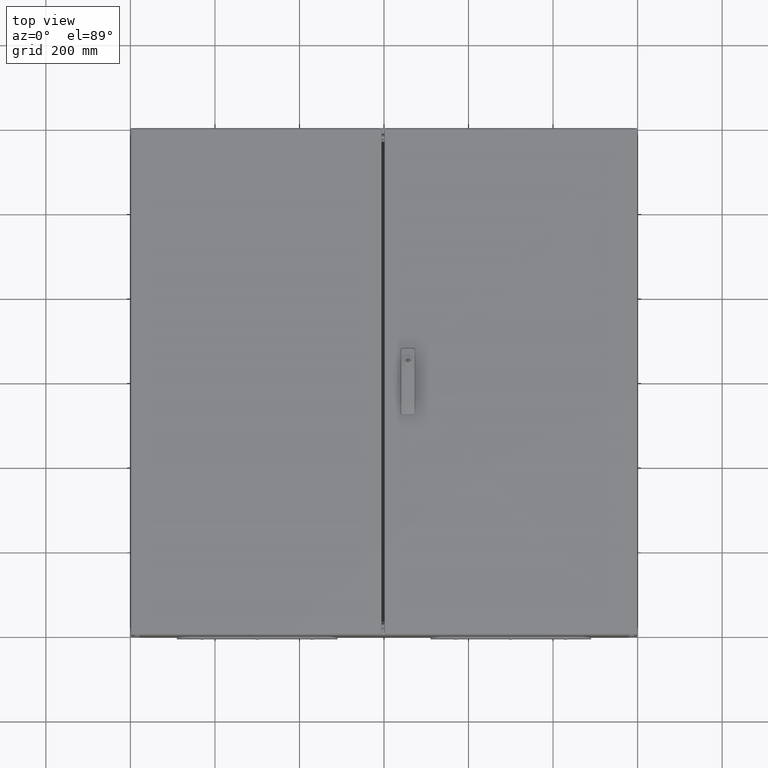
[diagram: clean part render]
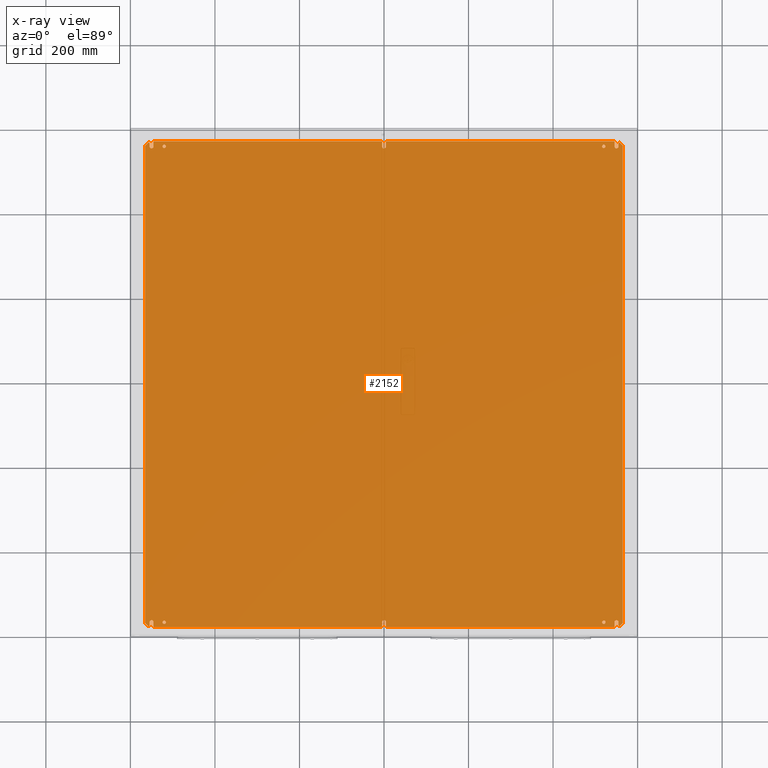
[diagram: x-ray — body ghosted, one internal face saturated and labeled with its STEP entity id]
A machine part, top view, then the same camera in x-ray: the body is ghosted and one INTERNAL B-rep face — a face not visible from any outside direction — is saturated and labeled: STEP entity #2152.
In plain terms, the highlighted planar face has unit normal (0, 0, 1).
Its self-contained STEP definition (entity closure, byte-faithful):
#332 = CARTESIAN_POINT ( 'NONE',  ( 524.0000000000000000, -562.9999999999998900, 2.499999999997726300 ) ) ;
#343 = CARTESIAN_POINT ( 'NONE',  ( -545.2500000000000000, 562.9999999999998900, 2.499999999997726300 ) ) ;
#377 = CARTESIAN_POINT ( 'NONE',  ( 516.0000000000000000, -562.9999999999998900, 2.499999999997726300 ) ) ;
#425 = CARTESIAN_POINT ( 'NONE',  ( -554.7500000000001100, -569.9999999999998900, 2.499999999997726300 ) ) ;
#448 = CARTESIAN_POINT ( 'NONE',  ( -565.0000000000003400, 564.5784271247459900, 2.500000000000000400 ) ) ;
#474 = CARTESIAN_POINT ( 'NONE',  ( -565.0000000000002300, -564.5784271247459900, 2.499999999997726300 ) ) ;
#503 = CARTESIAN_POINT ( 'NONE',  ( 558.1642135623732200, 571.4142135623728800, 2.499999999997726300 ) ) ;
#519 = CARTESIAN_POINT ( 'NONE',  ( 545.2500000000000000, 562.9999999999998900, 2.499999999997726300 ) ) ;
#559 = CARTESIAN_POINT ( 'NONE',  ( -4.749999999999893400, 574.9999999999998900, 2.500000000000000000 ) ) ;
#587 = CARTESIAN_POINT ( 'NONE',  ( 516.0000000000000000, 562.9999999999998900, 2.499999999997726300 ) ) ;
#606 = CARTESIAN_POINT ( 'NONE',  ( -554.7500000000001100, -562.9999999999998900, 2.499999999997726300 ) ) ;
#626 = CARTESIAN_POINT ( 'NONE',  ( -4.749999999999809900, -575.0000000000000000, 2.500000000000000000 ) ) ;
#652 = CARTESIAN_POINT ( 'NONE',  ( 524.0000000000000000, 562.9999999999998900, 2.499999999997726300 ) ) ;
#656 = CARTESIAN_POINT ( 'NONE',  ( 554.7500000000001100, -562.9999999999998900, 2.499999999997726300 ) ) ;
#686 = CARTESIAN_POINT ( 'NONE',  ( -524.0000000000000000, 562.9999999999998900, 2.499999999997726300 ) ) ;
#704 = CARTESIAN_POINT ( 'NONE',  ( -545.2500000000000000, -574.9999999999998900, 2.499999999997726300 ) ) ;
#712 = CARTESIAN_POINT ( 'NONE',  ( 4.750000000000004400, 574.9999999999998900, 2.500000000000000000 ) ) ;
#743 = CARTESIAN_POINT ( 'NONE',  ( -524.0000000000000000, -562.9999999999998900, 2.499999999997726300 ) ) ;
#748 = CARTESIAN_POINT ( 'NONE',  ( 554.7500000000001100, -569.9999999999998900, 2.499999999997726300 ) ) ;
#762 = CARTESIAN_POINT ( 'NONE',  ( 565.0000000000001100, -564.5784271247459900, 2.500000000000000400 ) ) ;
#773 = CARTESIAN_POINT ( 'NONE',  ( 545.2500000000000000, 574.9999999999998900, 2.499999999997726300 ) ) ;
#782 = CARTESIAN_POINT ( 'NONE',  ( 565.0000000000001100, 564.5784271247459900, 2.499999999997726300 ) ) ;
#783 = CARTESIAN_POINT ( 'NONE',  ( -545.2500000000000000, 574.9999999999997700, 2.500000000000000000 ) ) ;
#816 = CARTESIAN_POINT ( 'NONE',  ( 554.7500000000001100, 569.9999999999998900, 2.499999999997726300 ) ) ;
#826 = CARTESIAN_POINT ( 'NONE',  ( 4.750000000000200700, -563.0000000000000000, 2.500000000000000000 ) ) ;
#832 = CARTESIAN_POINT ( 'NONE',  ( 4.750000000000036400, 562.9999999999998900, 2.500000000000000000 ) ) ;
#851 = CARTESIAN_POINT ( 'NONE',  ( -516.0000000000000000, 562.9999999999998900, 2.499999999997726300 ) ) ;
#856 = CARTESIAN_POINT ( 'NONE',  ( -558.1642135623732200, 571.4142135623728800, 2.499999999997726300 ) ) ;
#872 = CARTESIAN_POINT ( 'NONE',  ( -516.0000000000000000, -562.9999999999998900, 2.499999999997726300 ) ) ;
#888 = CARTESIAN_POINT ( 'NONE',  ( -554.7500000000001100, 562.9999999999998900, 2.499999999997726300 ) ) ;
#909 = CARTESIAN_POINT ( 'NONE',  ( -554.7500000000001100, 569.9999999999998900, 2.499999999997726300 ) ) ;
#932 = CARTESIAN_POINT ( 'NONE',  ( 554.7500000000001100, 562.9999999999998900, 2.499999999997726300 ) ) ;
#981 = CARTESIAN_POINT ( 'NONE',  ( -4.749999999999992000, 562.9999999999998900, 2.500000000000000000 ) ) ;
#1023 = CARTESIAN_POINT ( 'NONE',  ( 4.750000000000144800, -575.0000000000001100, 2.500000000000000000 ) ) ;
#1063 = CARTESIAN_POINT ( 'NONE',  ( 545.2500000000000000, -562.9999999999998900, 2.499999999997726300 ) ) ;
#1104 = CARTESIAN_POINT ( 'NONE',  ( -4.749999999999854300, -563.0000000000000000, 2.500000000000000000 ) ) ;
#1166 = CARTESIAN_POINT ( 'NONE',  ( 558.1642135623732200, -571.4142135623728800, 2.499999999997726300 ) ) ;
#2152 = ADVANCED_FACE ( 'NONE', ( #70309, #71660, #71281, #70774, #71120 ), #91567, .T. ) ;
#6503 = VECTOR ( 'NONE', #21675, 1000.000000000000100 ) ;
#6507 = CIRCLE ( 'NONE', #72916, 4.000000000000003600 ) ;
#6510 = LINE ( 'NONE', #21706, #6503 ) ;
#6552 = CIRCLE ( 'NONE', #73665, 2.000000000000001800 ) ;
#6609 = CIRCLE ( 'NONE', #73848, 4.000000000000003600 ) ;
#11458 = VERTEX_POINT ( 'NONE', #39152 ) ;
#14217 = CARTESIAN_POINT ( 'NONE',  ( 556.7500000000001100, 569.9999999999998900, 2.499999999997726300 ) ) ;
#14220 = DIRECTION ( 'NONE',  ( -1.000000000000000000, 0.0000000000000000000, 0.0000000000000000000 ) ) ;
#14221 = DIRECTION ( 'NONE',  ( -0.0000000000000000000, -0.0000000000000000000, -1.000000000000000000 ) ) ;
#14238 = CARTESIAN_POINT ( 'NONE',  ( -554.7500000000001100, -562.9999999999998900, 2.499999999997726300 ) ) ;
#14265 = CARTESIAN_POINT ( 'NONE',  ( 520.0000000000000000, -562.9999999999998900, 2.499999999997726300 ) ) ;
#14274 = DIRECTION ( 'NONE',  ( 1.000000000000000000, 0.0000000000000000000, 0.0000000000000000000 ) ) ;
#14275 = DIRECTION ( 'NONE',  ( -0.0000000000000000000, -0.0000000000000000000, -1.000000000000000000 ) ) ;
#14292 = DIRECTION ( 'NONE',  ( -1.000000000000000000, 0.0000000000000000000, 0.0000000000000000000 ) ) ;
#14293 = DIRECTION ( 'NONE',  ( 0.0000000000000000000, 0.0000000000000000000, 1.000000000000000000 ) ) ;
#14301 = DIRECTION ( 'NONE',  ( -0.7071067811865507900, 0.7071067811865441300, 0.0000000000000000000 ) ) ;
#14309 = DIRECTION ( 'NONE',  ( 0.0000000000000000000, 0.0000000000000000000, 1.000000000000000000 ) ) ;
#14316 = DIRECTION ( 'NONE',  ( 1.000000000000000000, 0.0000000000000000000, 0.0000000000000000000 ) ) ;
#14331 = CARTESIAN_POINT ( 'NONE',  ( 545.2500000000000000, 574.9999999999998900, 2.499999999997726300 ) ) ;
#14332 = DIRECTION ( 'NONE',  ( 0.0000000000000000000, -1.000000000000000000, 0.0000000000000000000 ) ) ;
#14350 = DIRECTION ( 'NONE',  ( -1.000000000000000000, -9.738798461624179600E-017, -0.0000000000000000000 ) ) ;
#14351 = CARTESIAN_POINT ( 'NONE',  ( -570.0000000000001100, 574.9999999999997700, 2.500000000000000000 ) ) ;
#14368 = DIRECTION ( 'NONE',  ( -4.915049848600949000E-015, 1.000000000000000000, 0.0000000000000000000 ) ) ;
#14371 = CARTESIAN_POINT ( 'NONE',  ( 8.459921131687142500E-015, 562.9999999999998900, 2.500000000000000000 ) ) ;
#14386 = CARTESIAN_POINT ( 'NONE',  ( 558.1642135623732200, 571.4142135623728800, 2.499999999997726300 ) ) ;
#14389 = DIRECTION ( 'NONE',  ( 0.7071067811865507900, -0.7071067811865441300, 0.0000000000000000000 ) ) ;
#14401 = DIRECTION ( 'NONE',  ( 0.0000000000000000000, 0.0000000000000000000, 1.000000000000000000 ) ) ;
#14406 = DIRECTION ( 'NONE',  ( 1.000000000000000000, 0.0000000000000000000, 0.0000000000000000000 ) ) ;
#14421 = CARTESIAN_POINT ( 'NONE',  ( -4.749999999999893400, 574.9999999999998900, 2.500000000000000000 ) ) ;
#14426 = DIRECTION ( 'NONE',  ( -8.239936510889825800E-015, -1.000000000000000000, 0.0000000000000000000 ) ) ;
#14450 = DIRECTION ( 'NONE',  ( -1.000000000000000000, -9.738798461624179600E-017, -0.0000000000000000000 ) ) ;
#14451 = CARTESIAN_POINT ( 'NONE',  ( -570.0000000000001100, 574.9999999999997700, 2.500000000000000000 ) ) ;
#14482 = CARTESIAN_POINT ( 'NONE',  ( -550.0000000000000000, 562.9999999999998900, 2.499999999997726300 ) ) ;
#14509 = CARTESIAN_POINT ( 'NONE',  ( -545.2500000000000000, 574.9999999999998900, 2.499999999997726300 ) ) ;
#14511 = DIRECTION ( 'NONE',  ( 0.0000000000000000000, -1.000000000000000000, 0.0000000000000000000 ) ) ;
#14525 = DIRECTION ( 'NONE',  ( -0.0000000000000000000, -0.0000000000000000000, -1.000000000000000000 ) ) ;
#14528 = DIRECTION ( 'NONE',  ( -1.000000000000000000, 0.0000000000000000000, 0.0000000000000000000 ) ) ;
#14645 = CARTESIAN_POINT ( 'NONE',  ( 4.750000000000063100, 562.9999999999998900, 2.500000000000000000 ) ) ;
#14650 = DIRECTION ( 'NONE',  ( 0.0000000000000000000, 1.000000000000000000, 0.0000000000000000000 ) ) ;
#14651 = CARTESIAN_POINT ( 'NONE',  ( -554.7500000000001100, 562.9999999999998900, 2.499999999997726300 ) ) ;
#14713 = CARTESIAN_POINT ( 'NONE',  ( -556.7500000000001100, 569.9999999999998900, 2.499999999997726300 ) ) ;
#14771 = DIRECTION ( 'NONE',  ( -0.0000000000000000000, 0.0000000000000000000, 1.000000000000000000 ) ) ;
#14777 = DIRECTION ( 'NONE',  ( 1.000000000000000000, 0.0000000000000000000, 0.0000000000000000000 ) ) ;
#15264 = CARTESIAN_POINT ( 'NONE',  ( 550.0000000000000000, 562.9999999999998900, 2.499999999997726300 ) ) ;
#15272 = CARTESIAN_POINT ( 'NONE',  ( -520.0000000000000000, 562.9999999999998900, 2.499999999997726300 ) ) ;
#15283 = DIRECTION ( 'NONE',  ( 0.0000000000000000000, -1.000000000000000000, 0.0000000000000000000 ) ) ;
#15350 = DIRECTION ( 'NONE',  ( -1.000000000000000000, 0.0000000000000000000, 0.0000000000000000000 ) ) ;
#15353 = DIRECTION ( 'NONE',  ( -0.0000000000000000000, -0.0000000000000000000, -1.000000000000000000 ) ) ;
#15362 = CARTESIAN_POINT ( 'NONE',  ( -558.1642135623732200, -571.4142135623728800, 2.499999999997726300 ) ) ;
#15465 = CARTESIAN_POINT ( 'NONE',  ( -550.0000000000000000, -562.9999999999998900, 2.499999999997726300 ) ) ;
#15467 = DIRECTION ( 'NONE',  ( 0.0000000000000000000, 1.000000000000000000, 0.0000000000000000000 ) ) ;
#15723 = CARTESIAN_POINT ( 'NONE',  ( 554.7500000000001100, 562.9999999999998900, 2.499999999997726300 ) ) ;
#20361 = CARTESIAN_POINT ( 'NONE',  ( 520.0000000000000000, -562.9999999999998900, 2.499999999997726300 ) ) ;
#20387 = DIRECTION ( 'NONE',  ( 1.000000000000000000, 9.738798461624180900E-017, 0.0000000000000000000 ) ) ;
#20445 = DIRECTION ( 'NONE',  ( 0.0000000000000000000, 1.000000000000000000, 0.0000000000000000000 ) ) ;
#20448 = CARTESIAN_POINT ( 'NONE',  ( 545.2500000000000000, -574.9999999999998900, 2.499999999997726300 ) ) ;
#20455 = CARTESIAN_POINT ( 'NONE',  ( 550.0000000000000000, -562.9999999999998900, 2.499999999997726300 ) ) ;
#20474 = DIRECTION ( 'NONE',  ( 0.7071067811865507900, 0.7071067811865441300, 0.0000000000000000000 ) ) ;
#20540 = DIRECTION ( 'NONE',  ( 1.000000000000000000, 0.0000000000000000000, 0.0000000000000000000 ) ) ;
#20544 = DIRECTION ( 'NONE',  ( 0.0000000000000000000, 0.0000000000000000000, 1.000000000000000000 ) ) ;
#20567 = CARTESIAN_POINT ( 'NONE',  ( 1.463551507156791000E-013, -563.0000000000000000, 2.500000000000000000 ) ) ;
#20632 = DIRECTION ( 'NONE',  ( -0.0000000000000000000, -0.0000000000000000000, -1.000000000000000000 ) ) ;
#20671 = CARTESIAN_POINT ( 'NONE',  ( -520.0000000000000000, 562.9999999999998900, 2.499999999997726300 ) ) ;
#20685 = CARTESIAN_POINT ( 'NONE',  ( -4.749999999999753100, -575.0000000000001100, 2.500000000000000000 ) ) ;
#20692 = DIRECTION ( 'NONE',  ( 0.0000000000000000000, 1.000000000000000000, 0.0000000000000000000 ) ) ;
#20729 = CARTESIAN_POINT ( 'NONE',  ( -569.9999999999998900, -575.0000000000000000, 2.500000000000000000 ) ) ;
#20740 = CARTESIAN_POINT ( 'NONE',  ( -565.0000000000003400, 564.5784271247459900, 2.500000000000000400 ) ) ;
#20754 = CARTESIAN_POINT ( 'NONE',  ( 565.0000000000001100, -564.5784271247459900, 2.500000000000000400 ) ) ;
#20763 = CARTESIAN_POINT ( 'NONE',  ( 4.750000000000144800, -575.0000000000001100, 2.500000000000000000 ) ) ;
#20766 = DIRECTION ( 'NONE',  ( 0.0000000000000000000, 0.0000000000000000000, 1.000000000000000000 ) ) ;
#20799 = DIRECTION ( 'NONE',  ( -1.000000000000000000, 0.0000000000000000000, 0.0000000000000000000 ) ) ;
#20818 = DIRECTION ( 'NONE',  ( -0.0000000000000000000, -0.0000000000000000000, -1.000000000000000000 ) ) ;
#20854 = DIRECTION ( 'NONE',  ( -0.0000000000000000000, -0.0000000000000000000, -1.000000000000000000 ) ) ;
#20874 = DIRECTION ( 'NONE',  ( 1.000000000000000000, 0.0000000000000000000, 0.0000000000000000000 ) ) ;
#20877 = DIRECTION ( 'NONE',  ( 0.0000000000000000000, 0.0000000000000000000, 1.000000000000000000 ) ) ;
#20911 = DIRECTION ( 'NONE',  ( 0.0000000000000000000, -1.000000000000000000, 0.0000000000000000000 ) ) ;
#20969 = CARTESIAN_POINT ( 'NONE',  ( 554.7500000000001100, -562.9999999999998900, 2.499999999997726300 ) ) ;
#20987 = DIRECTION ( 'NONE',  ( -1.000000000000000000, 0.0000000000000000000, 0.0000000000000000000 ) ) ;
#21008 = CARTESIAN_POINT ( 'NONE',  ( 558.1642135623732200, -571.4142135623728800, 2.499999999997726300 ) ) ;
#21024 = DIRECTION ( 'NONE',  ( 1.000000000000000000, 0.0000000000000000000, 0.0000000000000000000 ) ) ;
#21071 = CARTESIAN_POINT ( 'NONE',  ( -520.0000000000000000, -562.9999999999998900, 2.499999999997726300 ) ) ;
#21094 = CARTESIAN_POINT ( 'NONE',  ( 556.7500000000001100, -569.9999999999998900, 2.499999999997726300 ) ) ;
#21104 = DIRECTION ( 'NONE',  ( 0.0000000000000000000, -0.0000000000000000000, 1.000000000000000000 ) ) ;
#21117 = DIRECTION ( 'NONE',  ( 4.698209414103848100E-015, 1.000000000000000000, 0.0000000000000000000 ) ) ;
#21153 = CARTESIAN_POINT ( 'NONE',  ( 520.0000000000000000, 562.9999999999998900, 2.499999999997726300 ) ) ;
#21158 = DIRECTION ( 'NONE',  ( 0.0000000000000000000, 0.0000000000000000000, -1.000000000000000000 ) ) ;
#21187 = CARTESIAN_POINT ( 'NONE',  ( 520.0000000000000000, 562.9999999999998900, 2.499999999997726300 ) ) ;
#21221 = DIRECTION ( 'NONE',  ( -1.000000000000000000, 0.0000000000000000000, 0.0000000000000000000 ) ) ;
#21223 = DIRECTION ( 'NONE',  ( 0.0000000000000000000, -1.000000000000000000, 0.0000000000000000000 ) ) ;
#21256 = DIRECTION ( 'NONE',  ( 8.456776945386926700E-015, -1.000000000000000000, -0.0000000000000000000 ) ) ;
#21260 = DIRECTION ( 'NONE',  ( 1.000000000000000000, 9.738798461624180900E-017, 0.0000000000000000000 ) ) ;
#21264 = CARTESIAN_POINT ( 'NONE',  ( -545.2500000000000000, -574.9999999999998900, 2.499999999997726300 ) ) ;
#21277 = DIRECTION ( 'NONE',  ( -1.000000000000000000, 0.0000000000000000000, 0.0000000000000000000 ) ) ;
#21285 = DIRECTION ( 'NONE',  ( 0.0000000000000000000, 1.000000000000000000, 0.0000000000000000000 ) ) ;
#21303 = CARTESIAN_POINT ( 'NONE',  ( -569.9999999999998900, -575.0000000000000000, 2.500000000000000000 ) ) ;
#21581 = CARTESIAN_POINT ( 'NONE',  ( -556.7500000000001100, -569.9999999999998900, 2.499999999997726300 ) ) ;
#21585 = DIRECTION ( 'NONE',  ( 1.000000000000000000, 0.0000000000000000000, 0.0000000000000000000 ) ) ;
#21615 = DIRECTION ( 'NONE',  ( 1.000000000000000000, 0.0000000000000000000, 0.0000000000000000000 ) ) ;
#21616 = DIRECTION ( 'NONE',  ( 0.0000000000000000000, 0.0000000000000000000, 1.000000000000000000 ) ) ;
#21626 = DIRECTION ( 'NONE',  ( -1.000000000000000000, 0.0000000000000000000, 0.0000000000000000000 ) ) ;
#21675 = DIRECTION ( 'NONE',  ( -0.7071067811865507900, -0.7071067811865441300, 0.0000000000000000000 ) ) ;
#21706 = CARTESIAN_POINT ( 'NONE',  ( -558.1642135623732200, 571.4142135623728800, 2.499999999997726300 ) ) ;
#21709 = DIRECTION ( 'NONE',  ( 0.0000000000000000000, 0.0000000000000000000, 1.000000000000000000 ) ) ;
#21720 = CARTESIAN_POINT ( 'NONE',  ( -520.0000000000000000, -562.9999999999998900, 2.499999999997726300 ) ) ;
#31589 = EDGE_CURVE ( 'NONE', #41554, #41707, #6507, .T. ) ;
#31594 = EDGE_CURVE ( 'NONE', #42021, #41689, #6510, .T. ) ;
#31622 = EDGE_CURVE ( 'NONE', #41665, #41594, #6552, .T. ) ;
#31659 = EDGE_CURVE ( 'NONE', #41745, #41746, #6609, .T. ) ;
#31747 = EDGE_CURVE ( 'NONE', #41689, #41783, #86193, .T. ) ;
#31754 = EDGE_CURVE ( 'NONE', #41746, #41745, #86265, .T. ) ;
#31758 = EDGE_CURVE ( 'NONE', #41684, #41713, #86274, .T. ) ;
#31760 = EDGE_CURVE ( 'NONE', #41713, #42083, #86301, .T. ) ;
#31761 = EDGE_CURVE ( 'NONE', #41707, #41554, #86320, .T. ) ;
#31765 = EDGE_CURVE ( 'NONE', #42083, #41909, #86352, .T. ) ;
#31768 = EDGE_CURVE ( 'NONE', #41684, #42059, #86364, .T. ) ;
#31771 = EDGE_CURVE ( 'NONE', #42059, #41708, #86399, .T. ) ;
#31774 = EDGE_CURVE ( 'NONE', #41909, #41827, #86410, .T. ) ;
#31775 = EDGE_CURVE ( 'NONE', #41552, #41536, #86427, .T. ) ;
#31779 = EDGE_CURVE ( 'NONE', #41827, #41692, #86458, .T. ) ;
#31781 = EDGE_CURVE ( 'NONE', #41708, #42041, #86463, .T. ) ;
#31785 = EDGE_CURVE ( 'NONE', #41796, #41748, #86505, .T. ) ;
#31786 = EDGE_CURVE ( 'NONE', #42049, #42041, #86501, .T. ) ;
#31788 = EDGE_CURVE ( 'NONE', #41692, #42053, #86515, .T. ) ;
#31795 = EDGE_CURVE ( 'NONE', #42053, #41740, #86567, .T. ) ;
#31798 = EDGE_CURVE ( 'NONE', #42049, #11458, #86530, .T. ) ;
#31800 = EDGE_CURVE ( 'NONE', #41748, #41796, #86617, .T. ) ;
#31802 = EDGE_CURVE ( 'NONE', #42030, #41740, #86621, .T. ) ;
#31807 = EDGE_CURVE ( 'NONE', #41550, #42030, #86670, .T. ) ;
#31810 = EDGE_CURVE ( 'NONE', #41557, #41550, #86681, .T. ) ;
#31814 = EDGE_CURVE ( 'NONE', #11458, #41612, #86721, .T. ) ;
#31817 = EDGE_CURVE ( 'NONE', #41612, #41665, #86718, .T. ) ;
#31819 = EDGE_CURVE ( 'NONE', #41536, #41552, #86761, .T. ) ;
#31820 = EDGE_CURVE ( 'NONE', #41594, #41783, #86665, .T. ) ;
#31822 = EDGE_CURVE ( 'NONE', #42031, #41557, #86784, .T. ) ;
#31825 = EDGE_CURVE ( 'NONE', #41429, #42031, #86795, .T. ) ;
#31828 = EDGE_CURVE ( 'NONE', #41429, #41444, #86819, .T. ) ;
#31831 = EDGE_CURVE ( 'NONE', #41414, #41444, #86843, .T. ) ;
#31834 = EDGE_CURVE ( 'NONE', #41640, #41414, #86877, .T. ) ;
#31837 = EDGE_CURVE ( 'NONE', #41764, #41640, #86890, .T. ) ;
#31840 = EDGE_CURVE ( 'NONE', #41764, #41994, #86914, .T. ) ;
#31849 = EDGE_CURVE ( 'NONE', #41994, #41749, #86869, .T. ) ;
#31851 = EDGE_CURVE ( 'NONE', #41749, #41338, #87008, .T. ) ;
#31864 = EDGE_CURVE ( 'NONE', #41338, #41916, #87058, .T. ) ;
#31880 = EDGE_CURVE ( 'NONE', #41916, #42021, #87221, .T. ) ;
#39152 = CARTESIAN_POINT ( 'NONE',  ( -545.2500000000000000, -562.9999999999998900, 2.499999999997726300 ) ) ;
#41338 = VERTEX_POINT ( 'NONE', #888 ) ;
#41414 = VERTEX_POINT ( 'NONE', #832 ) ;
#41429 = VERTEX_POINT ( 'NONE', #773 ) ;
#41444 = VERTEX_POINT ( 'NONE', #712 ) ;
#41536 = VERTEX_POINT ( 'NONE', #686 ) ;
#41550 = VERTEX_POINT ( 'NONE', #816 ) ;
#41552 = VERTEX_POINT ( 'NONE', #851 ) ;
#41554 = VERTEX_POINT ( 'NONE', #872 ) ;
#41557 = VERTEX_POINT ( 'NONE', #932 ) ;
#41594 = VERTEX_POINT ( 'NONE', #97819 ) ;
#41612 = VERTEX_POINT ( 'NONE', #606 ) ;
#41640 = VERTEX_POINT ( 'NONE', #981 ) ;
#41665 = VERTEX_POINT ( 'NONE', #425 ) ;
#41684 = VERTEX_POINT ( 'NONE', #1023 ) ;
#41689 = VERTEX_POINT ( 'NONE', #448 ) ;
#41692 = VERTEX_POINT ( 'NONE', #1166 ) ;
#41707 = VERTEX_POINT ( 'NONE', #743 ) ;
#41708 = VERTEX_POINT ( 'NONE', #1104 ) ;
#41713 = VERTEX_POINT ( 'NONE', #97797 ) ;
#41740 = VERTEX_POINT ( 'NONE', #782 ) ;
#41745 = VERTEX_POINT ( 'NONE', #652 ) ;
#41746 = VERTEX_POINT ( 'NONE', #587 ) ;
#41748 = VERTEX_POINT ( 'NONE', #332 ) ;
#41749 = VERTEX_POINT ( 'NONE', #343 ) ;
#41764 = VERTEX_POINT ( 'NONE', #559 ) ;
#41783 = VERTEX_POINT ( 'NONE', #474 ) ;
#41796 = VERTEX_POINT ( 'NONE', #377 ) ;
#41827 = VERTEX_POINT ( 'NONE', #748 ) ;
#41909 = VERTEX_POINT ( 'NONE', #656 ) ;
#41916 = VERTEX_POINT ( 'NONE', #909 ) ;
#41994 = VERTEX_POINT ( 'NONE', #783 ) ;
#42021 = VERTEX_POINT ( 'NONE', #856 ) ;
#42030 = VERTEX_POINT ( 'NONE', #503 ) ;
#42031 = VERTEX_POINT ( 'NONE', #519 ) ;
#42041 = VERTEX_POINT ( 'NONE', #626 ) ;
#42049 = VERTEX_POINT ( 'NONE', #704 ) ;
#42053 = VERTEX_POINT ( 'NONE', #762 ) ;
#42059 = VERTEX_POINT ( 'NONE', #826 ) ;
#42083 = VERTEX_POINT ( 'NONE', #1063 ) ;
#45822 = AXIS2_PLACEMENT_3D ( 'NONE', #92029, #91562, #91564 ) ;
#70309 = FACE_BOUND ( 'NONE', #96723, .T. ) ;
#70774 = FACE_BOUND ( 'NONE', #96981, .T. ) ;
#71120 = FACE_OUTER_BOUND ( 'NONE', #96044, .T. ) ;
#71281 = FACE_BOUND ( 'NONE', #95758, .T. ) ;
#71660 = FACE_BOUND ( 'NONE', #96728, .T. ) ;
#72904 = AXIS2_PLACEMENT_3D ( 'NONE', #14482, #14525, #14528 ) ;
#72916 = AXIS2_PLACEMENT_3D ( 'NONE', #21720, #21709, #21626 ) ;
#72936 = AXIS2_PLACEMENT_3D ( 'NONE', #15272, #15353, #15350 ) ;
#73033 = AXIS2_PLACEMENT_3D ( 'NONE', #14371, #14401, #14406 ) ;
#73133 = AXIS2_PLACEMENT_3D ( 'NONE', #21094, #21104, #21221 ) ;
#73141 = AXIS2_PLACEMENT_3D ( 'NONE', #15465, #14293, #14292 ) ;
#73142 = AXIS2_PLACEMENT_3D ( 'NONE', #14217, #14221, #14220 ) ;
#73171 = AXIS2_PLACEMENT_3D ( 'NONE', #20361, #20854, #20874 ) ;
#73491 = AXIS2_PLACEMENT_3D ( 'NONE', #14265, #14275, #14274 ) ;
#73514 = AXIS2_PLACEMENT_3D ( 'NONE', #21187, #20544, #20540 ) ;
#73598 = AXIS2_PLACEMENT_3D ( 'NONE', #20671, #20818, #21277 ) ;
#73623 = AXIS2_PLACEMENT_3D ( 'NONE', #20567, #20877, #20987 ) ;
#73646 = AXIS2_PLACEMENT_3D ( 'NONE', #15264, #14309, #14316 ) ;
#73665 = AXIS2_PLACEMENT_3D ( 'NONE', #21581, #21158, #21585 ) ;
#73748 = AXIS2_PLACEMENT_3D ( 'NONE', #14713, #14771, #14777 ) ;
#73779 = AXIS2_PLACEMENT_3D ( 'NONE', #21071, #20766, #20799 ) ;
#73843 = AXIS2_PLACEMENT_3D ( 'NONE', #20455, #20632, #21024 ) ;
#73848 = AXIS2_PLACEMENT_3D ( 'NONE', #21153, #21616, #21615 ) ;
#85734 = ORIENTED_EDGE ( 'NONE', *, *, #31788, .T. ) ;
#85740 = ORIENTED_EDGE ( 'NONE', *, *, #31795, .T. ) ;
#85754 = ORIENTED_EDGE ( 'NONE', *, *, #31802, .F. ) ;
#85759 = ORIENTED_EDGE ( 'NONE', *, *, #31807, .F. ) ;
#85779 = ORIENTED_EDGE ( 'NONE', *, *, #31810, .F. ) ;
#85782 = ORIENTED_EDGE ( 'NONE', *, *, #31822, .F. ) ;
#85795 = ORIENTED_EDGE ( 'NONE', *, *, #31825, .F. ) ;
#85799 = ORIENTED_EDGE ( 'NONE', *, *, #31828, .T. ) ;
#85820 = ORIENTED_EDGE ( 'NONE', *, *, #31831, .F. ) ;
#85825 = ORIENTED_EDGE ( 'NONE', *, *, #31834, .F. ) ;
#85842 = ORIENTED_EDGE ( 'NONE', *, *, #31837, .F. ) ;
#85847 = ORIENTED_EDGE ( 'NONE', *, *, #31840, .T. ) ;
#85872 = ORIENTED_EDGE ( 'NONE', *, *, #31849, .T. ) ;
#85879 = ORIENTED_EDGE ( 'NONE', *, *, #31851, .T. ) ;
#85904 = ORIENTED_EDGE ( 'NONE', *, *, #31864, .T. ) ;
#85913 = ORIENTED_EDGE ( 'NONE', *, *, #31880, .T. ) ;
#86193 = LINE ( 'NONE', #20740, #86201 ) ;
#86201 = VECTOR ( 'NONE', #20911, 1000.000000000000000 ) ;
#86255 = VECTOR ( 'NONE', #21260, 1000.000000000000000 ) ;
#86265 = CIRCLE ( 'NONE', #73514, 4.000000000000003600 ) ;
#86274 = LINE ( 'NONE', #21303, #86255 ) ;
#86301 = LINE ( 'NONE', #20448, #86305 ) ;
#86305 = VECTOR ( 'NONE', #20445, 1000.000000000000000 ) ;
#86320 = CIRCLE ( 'NONE', #73779, 4.000000000000003600 ) ;
#86352 = CIRCLE ( 'NONE', #73843, 4.750000000000032000 ) ;
#86364 = LINE ( 'NONE', #20763, #86368 ) ;
#86368 = VECTOR ( 'NONE', #21117, 1000.000000000000000 ) ;
#86399 = CIRCLE ( 'NONE', #73623, 4.750000000000027500 ) ;
#86410 = LINE ( 'NONE', #20969, #86413 ) ;
#86413 = VECTOR ( 'NONE', #21223, 1000.000000000000000 ) ;
#86427 = CIRCLE ( 'NONE', #73598, 4.000000000000003600 ) ;
#86446 = VECTOR ( 'NONE', #20387, 1000.000000000000000 ) ;
#86458 = CIRCLE ( 'NONE', #73133, 2.000000000000001800 ) ;
#86463 = LINE ( 'NONE', #20685, #86466 ) ;
#86466 = VECTOR ( 'NONE', #21256, 1000.000000000000000 ) ;
#86496 = VECTOR ( 'NONE', #20474, 1000.000000000000100 ) ;
#86501 = LINE ( 'NONE', #20729, #86446 ) ;
#86505 = CIRCLE ( 'NONE', #73171, 4.000000000000003600 ) ;
#86515 = LINE ( 'NONE', #21008, #86496 ) ;
#86530 = LINE ( 'NONE', #21264, #86591 ) ;
#86567 = LINE ( 'NONE', #20754, #86571 ) ;
#86571 = VECTOR ( 'NONE', #20692, 1000.000000000000000 ) ;
#86591 = VECTOR ( 'NONE', #21285, 1000.000000000000000 ) ;
#86617 = CIRCLE ( 'NONE', #73491, 4.000000000000003600 ) ;
#86621 = LINE ( 'NONE', #14386, #86625 ) ;
#86625 = VECTOR ( 'NONE', #14389, 1000.000000000000100 ) ;
#86665 = LINE ( 'NONE', #15362, #86707 ) ;
#86670 = CIRCLE ( 'NONE', #73142, 2.000000000000001800 ) ;
#86681 = LINE ( 'NONE', #15723, #86685 ) ;
#86685 = VECTOR ( 'NONE', #15467, 1000.000000000000000 ) ;
#86707 = VECTOR ( 'NONE', #14301, 1000.000000000000100 ) ;
#86718 = LINE ( 'NONE', #14238, #86734 ) ;
#86721 = CIRCLE ( 'NONE', #73141, 4.750000000000032000 ) ;
#86734 = VECTOR ( 'NONE', #15283, 1000.000000000000000 ) ;
#86761 = CIRCLE ( 'NONE', #72936, 4.000000000000003600 ) ;
#86784 = CIRCLE ( 'NONE', #73646, 4.750000000000032000 ) ;
#86795 = LINE ( 'NONE', #14331, #86799 ) ;
#86799 = VECTOR ( 'NONE', #14332, 1000.000000000000000 ) ;
#86819 = LINE ( 'NONE', #14351, #86824 ) ;
#86824 = VECTOR ( 'NONE', #14350, 1000.000000000000000 ) ;
#86827 = ORIENTED_EDGE ( 'NONE', *, *, #31775, .T. ) ;
#86834 = ORIENTED_EDGE ( 'NONE', *, *, #31819, .T. ) ;
#86841 = ORIENTED_EDGE ( 'NONE', *, *, #31589, .F. ) ;
#86843 = LINE ( 'NONE', #14645, #86847 ) ;
#86847 = VECTOR ( 'NONE', #14368, 1000.000000000000000 ) ;
#86850 = ORIENTED_EDGE ( 'NONE', *, *, #31761, .F. ) ;
#86856 = ORIENTED_EDGE ( 'NONE', *, *, #31800, .T. ) ;
#86865 = ORIENTED_EDGE ( 'NONE', *, *, #31785, .T. ) ;
#86869 = LINE ( 'NONE', #14509, #86925 ) ;
#86872 = ORIENTED_EDGE ( 'NONE', *, *, #31659, .F. ) ;
#86877 = CIRCLE ( 'NONE', #73033, 4.750000000000027500 ) ;
#86890 = LINE ( 'NONE', #14421, #86894 ) ;
#86893 = ORIENTED_EDGE ( 'NONE', *, *, #31754, .F. ) ;
#86894 = VECTOR ( 'NONE', #14426, 1000.000000000000000 ) ;
#86906 = ORIENTED_EDGE ( 'NONE', *, *, #31594, .T. ) ;
#86914 = LINE ( 'NONE', #14451, #86917 ) ;
#86916 = ORIENTED_EDGE ( 'NONE', *, *, #31747, .T. ) ;
#86917 = VECTOR ( 'NONE', #14450, 1000.000000000000000 ) ;
#86920 = ORIENTED_EDGE ( 'NONE', *, *, #31820, .F. ) ;
#86925 = VECTOR ( 'NONE', #14511, 1000.000000000000000 ) ;
#86928 = ORIENTED_EDGE ( 'NONE', *, *, #31622, .F. ) ;
#86956 = ORIENTED_EDGE ( 'NONE', *, *, #31817, .F. ) ;
#86972 = ORIENTED_EDGE ( 'NONE', *, *, #31814, .F. ) ;
#86978 = ORIENTED_EDGE ( 'NONE', *, *, #31798, .F. ) ;
#86993 = ORIENTED_EDGE ( 'NONE', *, *, #31786, .T. ) ;
#87003 = ORIENTED_EDGE ( 'NONE', *, *, #31781, .F. ) ;
#87008 = CIRCLE ( 'NONE', #72904, 4.750000000000032000 ) ;
#87014 = ORIENTED_EDGE ( 'NONE', *, *, #31771, .F. ) ;
#87025 = ORIENTED_EDGE ( 'NONE', *, *, #31768, .F. ) ;
#87038 = ORIENTED_EDGE ( 'NONE', *, *, #31758, .T. ) ;
#87049 = ORIENTED_EDGE ( 'NONE', *, *, #31760, .T. ) ;
#87058 = LINE ( 'NONE', #14651, #87073 ) ;
#87061 = ORIENTED_EDGE ( 'NONE', *, *, #31765, .T. ) ;
#87067 = ORIENTED_EDGE ( 'NONE', *, *, #31774, .T. ) ;
#87073 = VECTOR ( 'NONE', #14650, 1000.000000000000000 ) ;
#87083 = ORIENTED_EDGE ( 'NONE', *, *, #31779, .T. ) ;
#87221 = CIRCLE ( 'NONE', #73748, 2.000000000000001800 ) ;
#91562 = DIRECTION ( 'NONE',  ( -0.0000000000000000000, 0.0000000000000000000, 1.000000000000000000 ) ) ;
#91564 = DIRECTION ( 'NONE',  ( 1.000000000000000000, 0.0000000000000000000, 0.0000000000000000000 ) ) ;
#91567 = PLANE ( 'NONE',  #45822 ) ;
#92029 = CARTESIAN_POINT ( 'NONE',  ( -569.9999999999998900, -575.0000000000000000, 2.500000000000000000 ) ) ;
#95758 = EDGE_LOOP ( 'NONE', ( #86856, #86865 ) ) ;
#96044 = EDGE_LOOP ( 'NONE', ( #86906, #86916, #86920, #86928, #86956, #86972, #86978, #86993, #87003, #87014, #87025, #87038, #87049, #87061, #87067, #87083, #85734, #85740, #85754, #85759, #85779, #85782, #85795, #85799, #85820, #85825, #85842, #85847, #85872, #85879, #85904, #85913 ) ) ;
#96723 = EDGE_LOOP ( 'NONE', ( #86827, #86834 ) ) ;
#96728 = EDGE_LOOP ( 'NONE', ( #86841, #86850 ) ) ;
#96981 = EDGE_LOOP ( 'NONE', ( #86872, #86893 ) ) ;
#97797 = CARTESIAN_POINT ( 'NONE',  ( 545.2500000000000000, -574.9999999999998900, 2.499999999997726300 ) ) ;
#97819 = CARTESIAN_POINT ( 'NONE',  ( -558.1642135623732200, -571.4142135623728800, 2.499999999997726300 ) ) ;